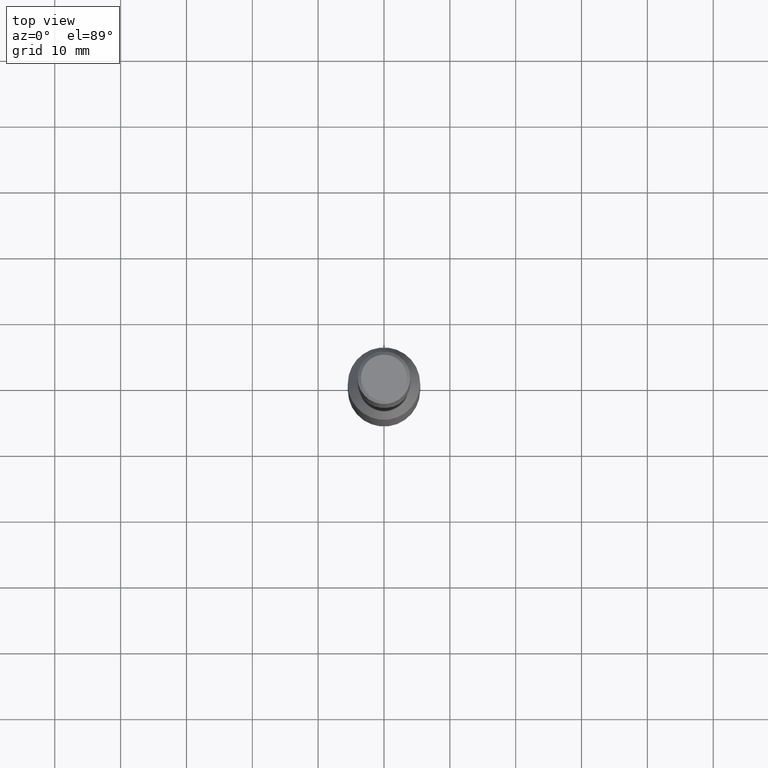
[diagram: clean part render]
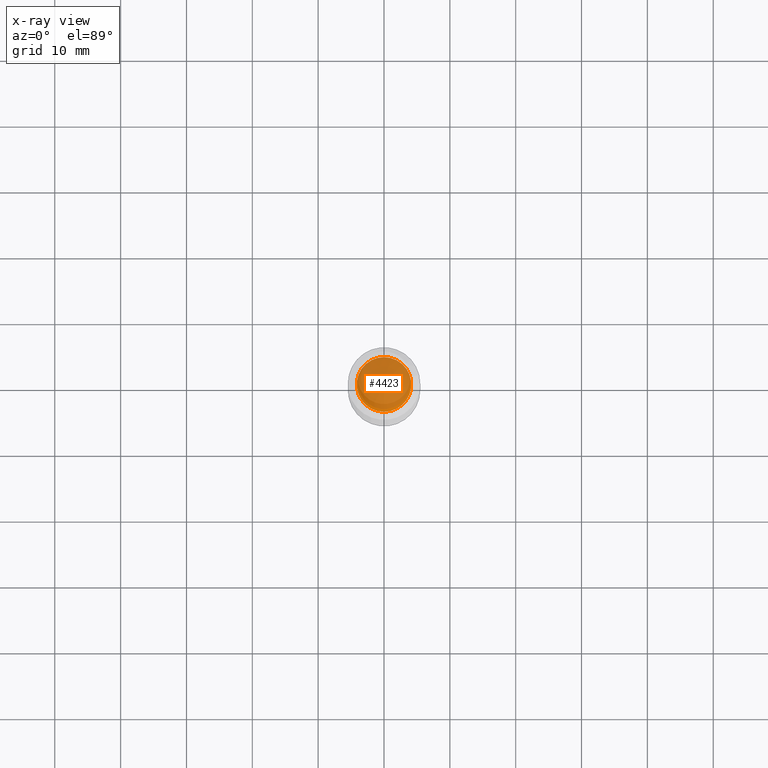
[diagram: x-ray — body ghosted, one internal face saturated and labeled with its STEP entity id]
A machine part, top view, then the same camera in x-ray: the body is ghosted and one INTERNAL B-rep face — a face not visible from any outside direction — is saturated and labeled: STEP entity #4423.
In plain terms, the highlighted conical surface has half-angle 59 deg.
Its self-contained STEP definition (entity closure, byte-faithful):
#2756 = AXIS2_PLACEMENT_3D ( 'NONE', #7910, #9016, #10101 ) ;
#4423 = ADVANCED_FACE ( 'NONE', ( #11616 ), #10422, .F. ) ;
#4723 = DIRECTION ( 'NONE',  ( -0.000000000000000000, -1.350051835620891801E-18, 1.000000000000000000 ) ) ;
#4772 = CARTESIAN_POINT ( 'NONE',  ( 0.000000000000000000, -6.750259178104458467E-17, 50.00000000000000000 ) ) ;
#7242 = EDGE_LOOP ( 'NONE', ( #12577 ) ) ;
#7910 = CARTESIAN_POINT ( 'NONE',  ( 0.000000000000000000, -6.750259178104458467E-17, 50.00000000000000000 ) ) ;
#8875 = EDGE_CURVE ( 'NONE', #10317, #10317, #9364, .T. ) ;
#9016 = DIRECTION ( 'NONE',  ( 0.000000000000000000, 1.350051835620891801E-18, -1.000000000000000000 ) ) ;
#9364 = CIRCLE ( 'NONE', #13139, 4.149999999999994138 ) ;
#10101 = DIRECTION ( 'NONE',  ( 0.000000000000000000, 1.000000000000000000, 0.000000000000000000 ) ) ;
#10291 = CARTESIAN_POINT ( 'NONE',  ( 0.000000000000000000, -4.149999999999994138, 50.00000000000000000 ) ) ;
#10317 = VERTEX_POINT ( 'NONE', #10291 ) ;
#10422 = CONICAL_SURFACE ( 'NONE', #2756, 4.149999999999994138, 1.029744258676650093 ) ;
#11616 = FACE_OUTER_BOUND ( 'NONE', #7242, .T. ) ;
#12276 = DIRECTION ( 'NONE',  ( 0.000000000000000000, -1.000000000000000000, 0.000000000000000000 ) ) ;
#12577 = ORIENTED_EDGE ( 'NONE', *, *, #8875, .F. ) ;
#13139 = AXIS2_PLACEMENT_3D ( 'NONE', #4772, #4723, #12276 ) ;